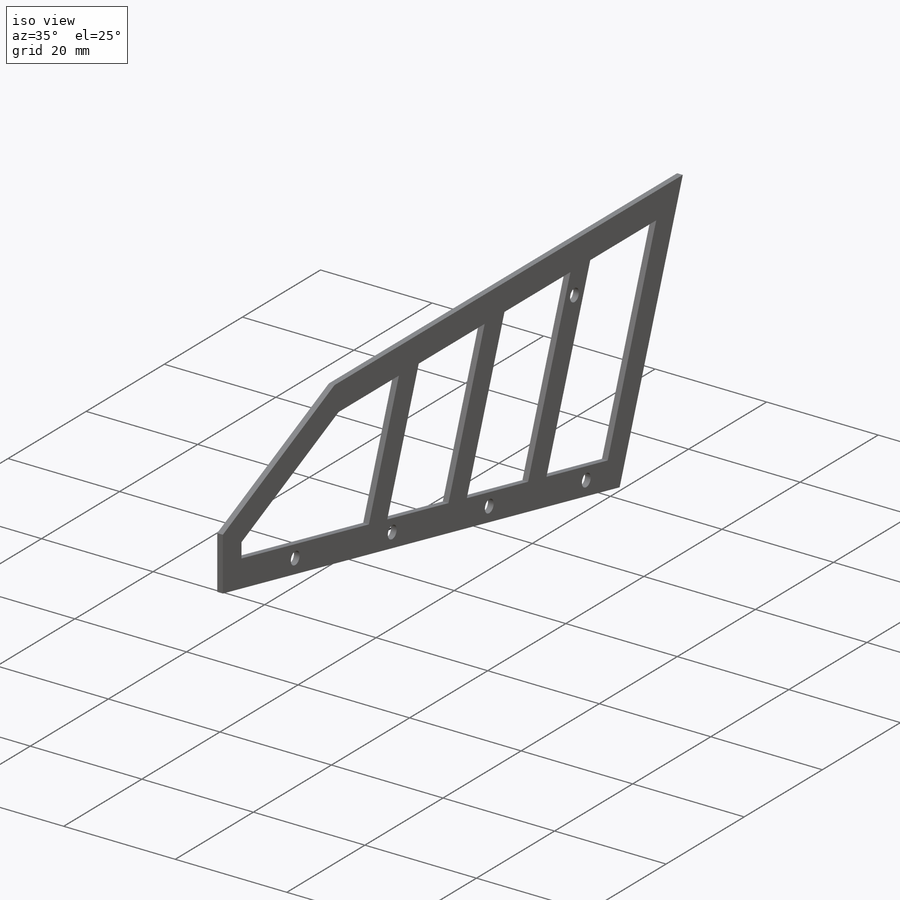
[diagram: iso view]
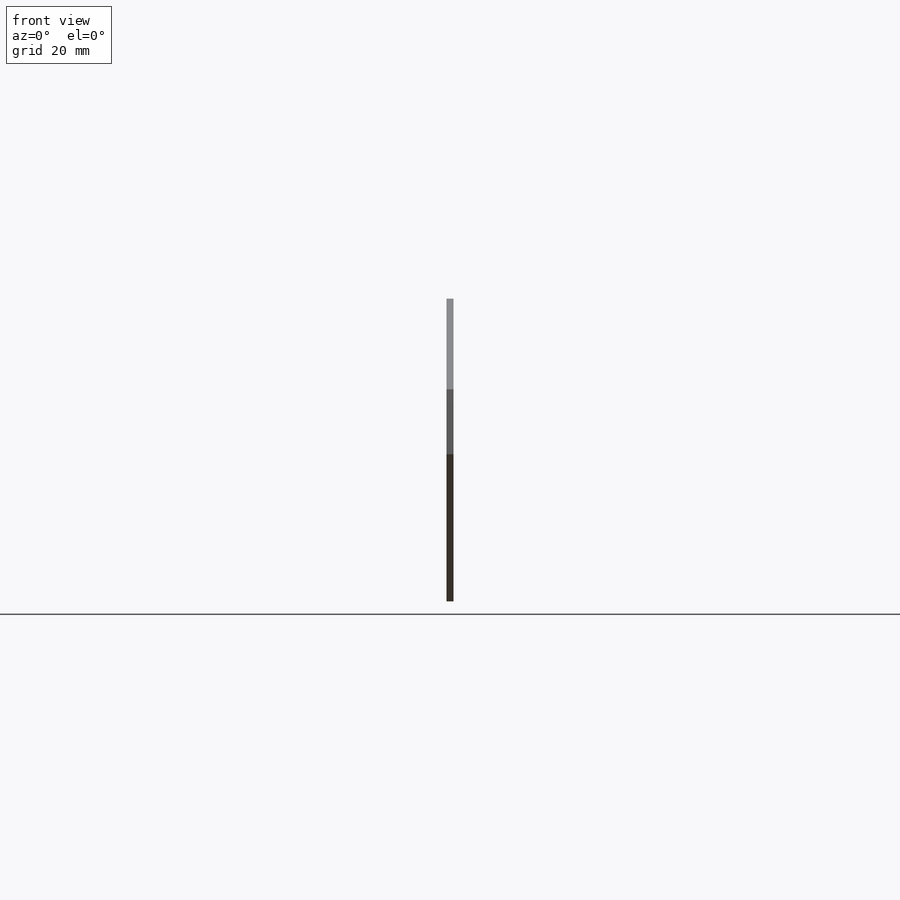
[diagram: front view]
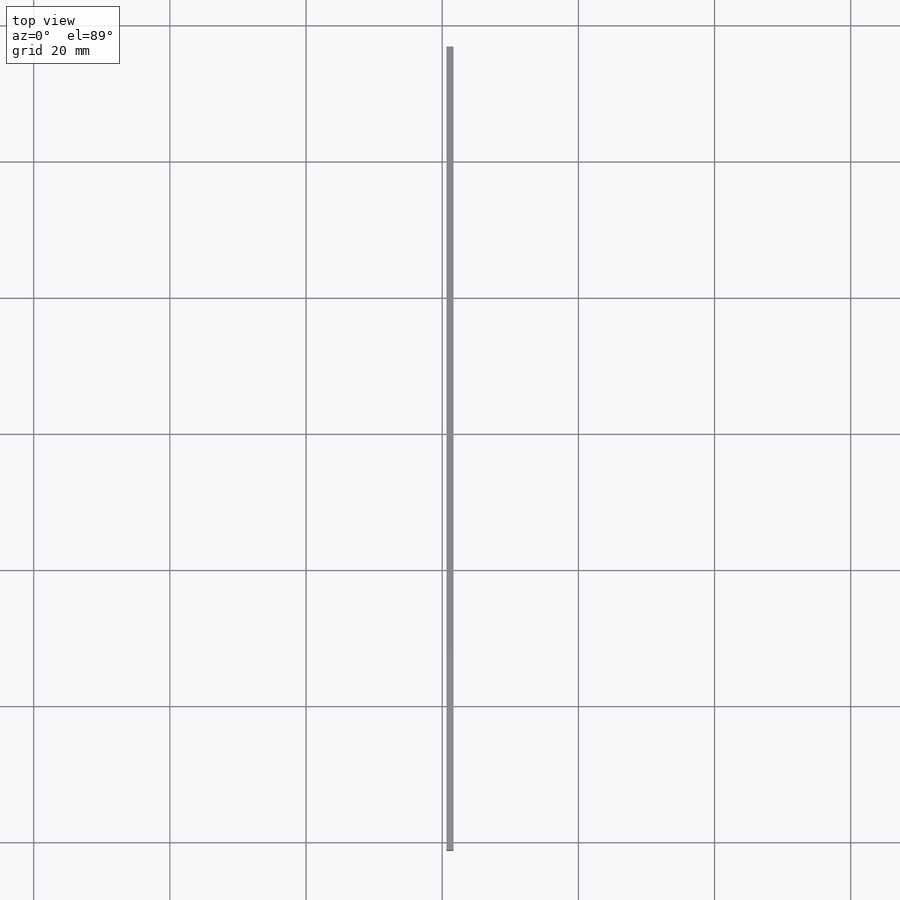
[diagram: top view]
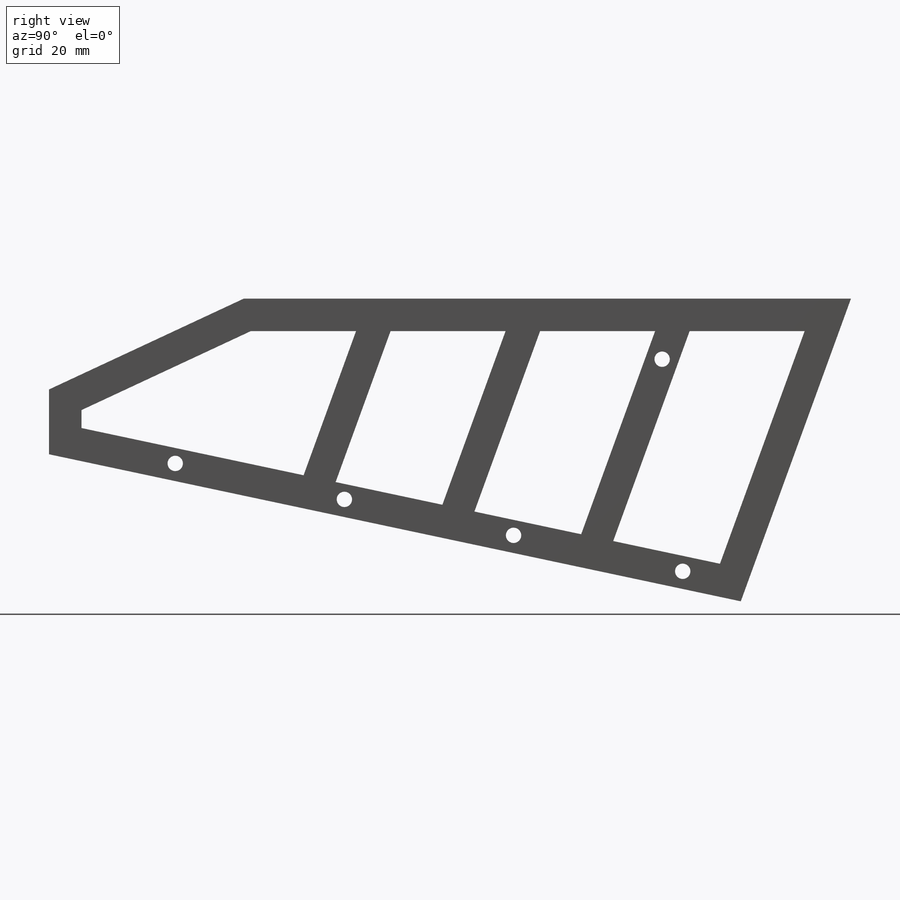
[diagram: right view]
SOLIDWORKS PART (.sldprt)
format: sldprt  version: not decoded by parser v0  size: 270,336 bytes
history: native  units: mm
features: sketch x5, cut_extrude x3, extrude x2, material x1 (+14 scaffold rows collapsed)
feature tree (25):
  scaffold x14  (default folders/planes/origin — collapsed)
  material  "Material <not specified>"
  sketch  "Sketch1"  dims[c1.D1=9.525mm c1.D2=44.45mm c1.D3=101.6mm c1.D4=~32.299272mm c2.D4=70.0deg c2.D5=~17.666971mm c3.D5=12.0deg c3.D6=~24.94307mm c4.D6=65.0deg]
  extrude  "Extrude1"  Depth=0.635mm
  sketch  "Sketch2"  dims[c1.D2=~4.165069mm c1.D3=~4.165069mm c1.D4=~4.165069mm c1.D5=~4.165069mm c1.D6=3.175mm c1.D1=2.54mm c2.D2=25.4mm c2.D3=25.4mm c2.D4=25.4mm c2.D5=9.525mm]
  cut_extrude  "Extrude2"  [1 undecoded]
  sketch  "Sketch3"  dims[D2=2.2606mm D3=4.7625mm D4=15.875mm D5=4.7625mm D6=15.875mm D7=15.875mm D8=4.7625mm D1=4.7625mm]
  extrude  "Extrude3"  Depth=1.016mm
  sketch  "Sketch4"  dims[D1=0.0mm]
  cut_extrude  "Extrude4"  [1 undecoded]
  sketch  "Sketch5"  dims[c1.D3=1.1303mm c1.D4=1.1303mm c1.D2=2.2606mm c1.D1=~2.38125mm c2.D2=2.2606mm c2.D3=4.7625mm c2.D4=8.89mm c3.D2=8.89mm]
  cut_extrude  "Cut-Extrude1"  [1 undecoded]
decode coverage: 7 of 10 modeling features carry decoded parameters
note: ~ marks probable driven/reference dimensions
note: 3 parameter values undecoded
summary: no parameter record found for 3 features
note: suppression state not decoded; provenance and decode notes live in map.json
